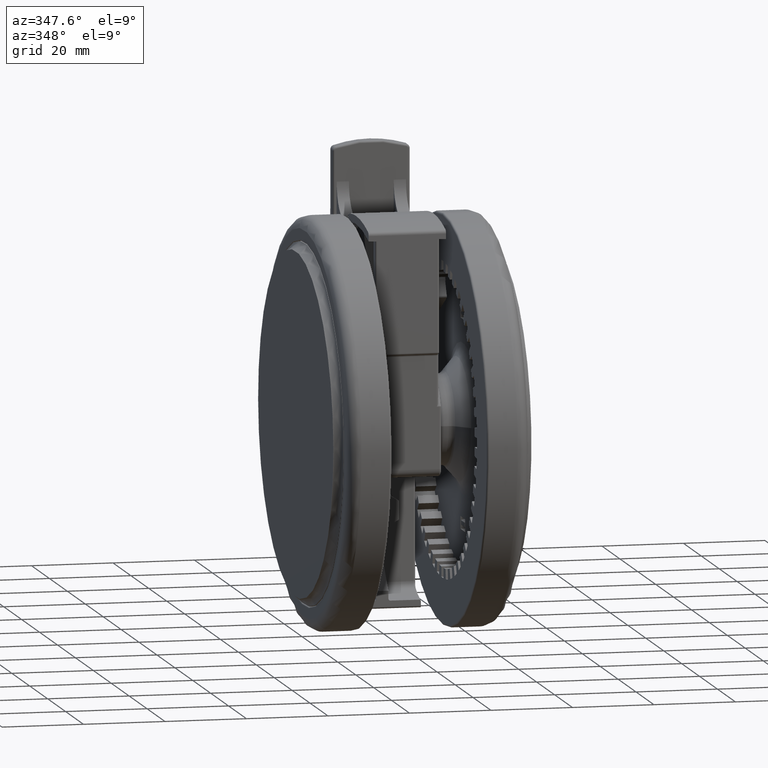
[diagram: clean part render]
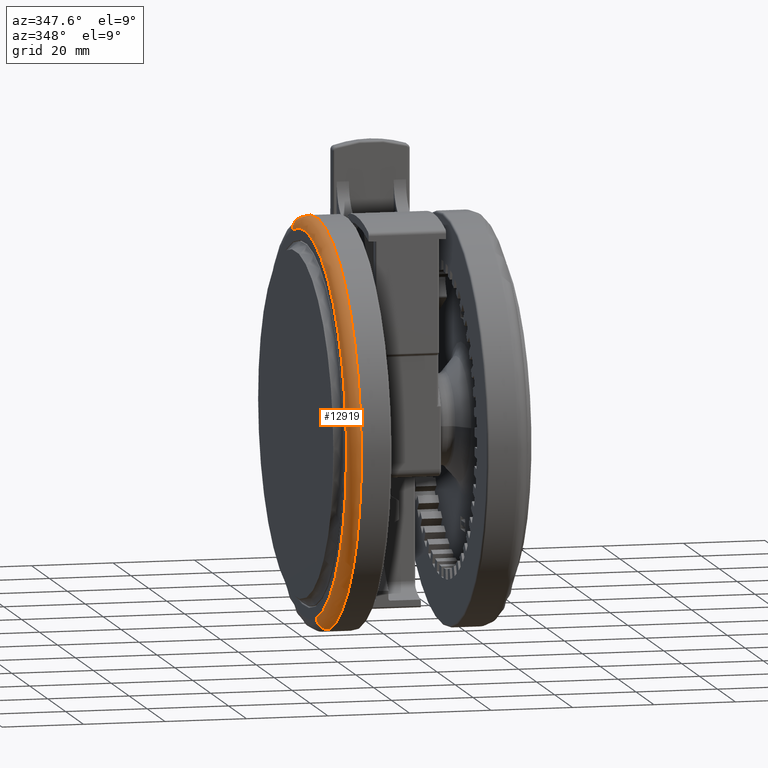
[diagram: same view with one face highlighted and labeled with its STEP entity id]
A machine part, auxiliary view. The second image highlights one B-rep face of the part: STEP entity #12919.
In plain terms, the highlighted toroidal blend (fillet) surface has major radius 47 mm and minor (blend) radius 3 mm.
Its self-contained STEP definition (entity closure, byte-faithful):
#303 = DIRECTION ( 'NONE',  ( -3.380642383533773200E-017, -2.202247500052102700E-016, -1.000000000000000000 ) ) ;
#2277 = CIRCLE ( 'NONE', #36432, 2.999999999999999600 ) ;
#6465 = VERTEX_POINT ( 'NONE', #23974 ) ;
#6589 = DIRECTION ( 'NONE',  ( -0.9587657712597810200, 0.2841974592789973700, -3.017487239981049600E-017 ) ) ;
#6622 = CARTESIAN_POINT ( 'NONE',  ( -45.06199124920969700, 13.35728058611286800, -43.50000000000005000 ) ) ;
#9656 = CIRCLE ( 'NONE', #45975, 50.00000000000000700 ) ;
#10420 = DIRECTION ( 'NONE',  ( 3.380642383533773200E-017, 2.202247500052102700E-016, 1.000000000000000000 ) ) ;
#10428 = DIRECTION ( 'NONE',  ( -0.9587657712597810200, 0.2841974592789973100, 0.0000000000000000000 ) ) ;
#12761 = ORIENTED_EDGE ( 'NONE', *, *, #43083, .T. ) ;
#12919 = ADVANCED_FACE ( 'NONE', ( #13294 ), #33362, .T. ) ;
#13294 = FACE_OUTER_BOUND ( 'NONE', #14502, .T. ) ;
#14502 = EDGE_LOOP ( 'NONE', ( #33553, #14938, #12761, #15937 ) ) ;
#14938 = ORIENTED_EDGE ( 'NONE', *, *, #39696, .F. ) ;
#15937 = ORIENTED_EDGE ( 'NONE', *, *, #28984, .F. ) ;
#19571 = CARTESIAN_POINT ( 'NONE',  ( 45.06199124920972600, -13.35728058611288900, -43.50000000000005000 ) ) ;
#19620 = EDGE_CURVE ( 'NONE', #41945, #20156, #2277, .T. ) ;
#20156 = VERTEX_POINT ( 'NONE', #42599 ) ;
#21764 = CARTESIAN_POINT ( 'NONE',  ( 45.06199124920972600, -13.35728058611288900, -46.50000000000000000 ) ) ;
#22945 = CARTESIAN_POINT ( 'NONE',  ( 1.387778780781445700E-014, -8.673617379884035500E-015, -46.49999999999994300 ) ) ;
#23393 = DIRECTION ( 'NONE',  ( 0.9587657712597810200, -0.2841974592789973100, 0.0000000000000000000 ) ) ;
#23974 = CARTESIAN_POINT ( 'NONE',  ( -47.93828856298903700, 14.20987296394985900, -43.50000000000005000 ) ) ;
#26724 = DIRECTION ( 'NONE',  ( -0.9587657712597809100, 0.2841974592789973100, 0.0000000000000000000 ) ) ;
#28984 = EDGE_CURVE ( 'NONE', #20156, #6465, #9656, .T. ) ;
#29029 = CARTESIAN_POINT ( 'NONE',  ( 1.397920707932046400E-014, -8.012943129868428100E-015, -43.50000000000005000 ) ) ;
#31876 = CIRCLE ( 'NONE', #38504, 47.00000000000000700 ) ;
#33015 = CARTESIAN_POINT ( 'NONE',  ( 1.397920707932046400E-014, -8.012943129868428100E-015, -43.50000000000005000 ) ) ;
#33025 = DIRECTION ( 'NONE',  ( 0.2841974592789973700, 0.9587657712597810200, -2.207516520505498100E-016 ) ) ;
#33362 = TOROIDAL_SURFACE ( 'NONE', #34934, 47.00000000000000000, 3.000000000000000000 ) ;
#33553 = ORIENTED_EDGE ( 'NONE', *, *, #19620, .F. ) ;
#34934 = AXIS2_PLACEMENT_3D ( 'NONE', #29029, #47962, #6589 ) ;
#36432 = AXIS2_PLACEMENT_3D ( 'NONE', #19571, #45955, #23393 ) ;
#36766 = DIRECTION ( 'NONE',  ( -0.9587657712597809100, 0.2841974592789973700, 0.0000000000000000000 ) ) ;
#38504 = AXIS2_PLACEMENT_3D ( 'NONE', #22945, #303, #26724 ) ;
#38960 = CARTESIAN_POINT ( 'NONE',  ( -45.06199124920969700, 13.35728058611286800, -46.50000000000000000 ) ) ;
#39696 = EDGE_CURVE ( 'NONE', #42838, #41945, #31876, .T. ) ;
#41945 = VERTEX_POINT ( 'NONE', #21764 ) ;
#42205 = CIRCLE ( 'NONE', #45579, 2.999999999999999600 ) ;
#42599 = CARTESIAN_POINT ( 'NONE',  ( 47.93828856298906500, -14.20987296394988400, -43.50000000000005000 ) ) ;
#42838 = VERTEX_POINT ( 'NONE', #38960 ) ;
#43083 = EDGE_CURVE ( 'NONE', #42838, #6465, #42205, .T. ) ;
#45579 = AXIS2_PLACEMENT_3D ( 'NONE', #6622, #33025, #10428 ) ;
#45955 = DIRECTION ( 'NONE',  ( -0.2841974592789974800, -0.9587657712597810200, 2.207516520505498100E-016 ) ) ;
#45975 = AXIS2_PLACEMENT_3D ( 'NONE', #33015, #10420, #36766 ) ;
#47962 = DIRECTION ( 'NONE',  ( 3.380642383533773200E-017, 2.202247500052102700E-016, 1.000000000000000000 ) ) ;